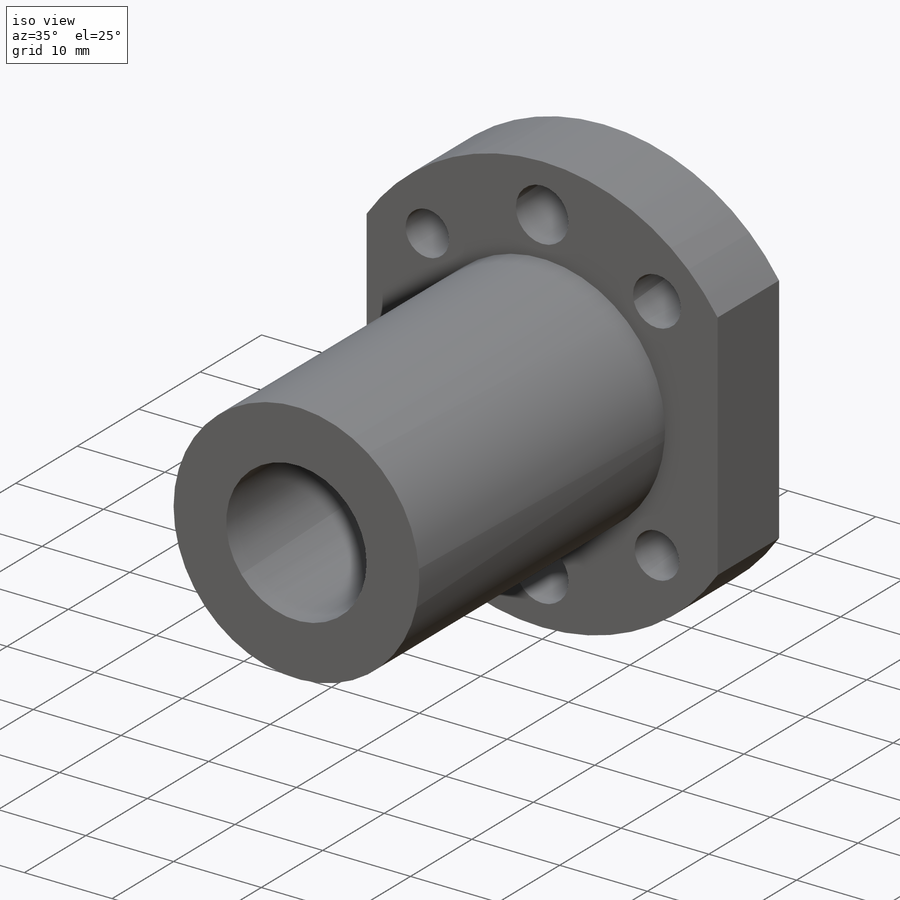
[diagram: iso view]
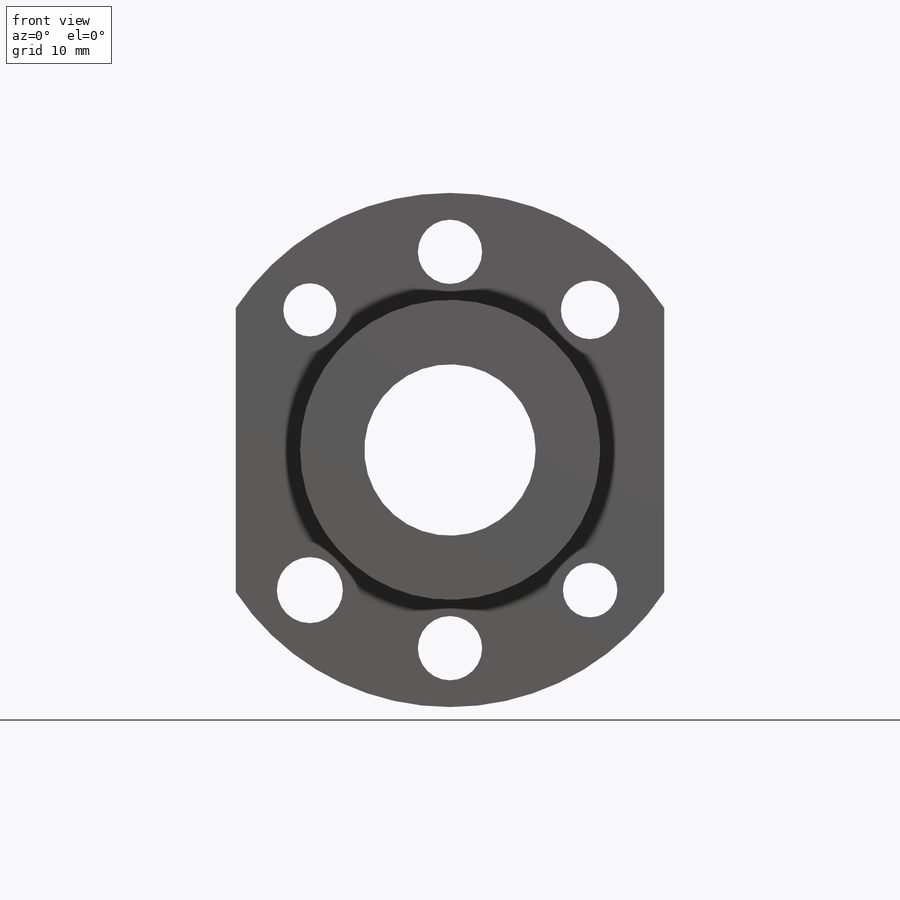
[diagram: front view]
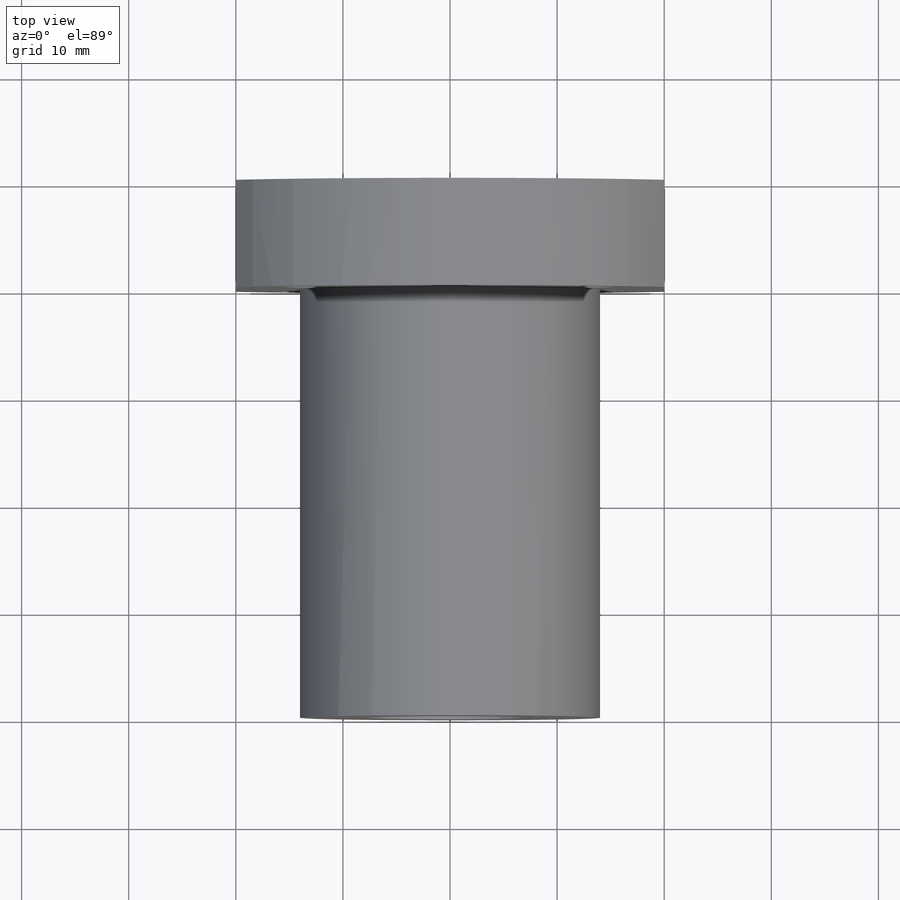
[diagram: top view]
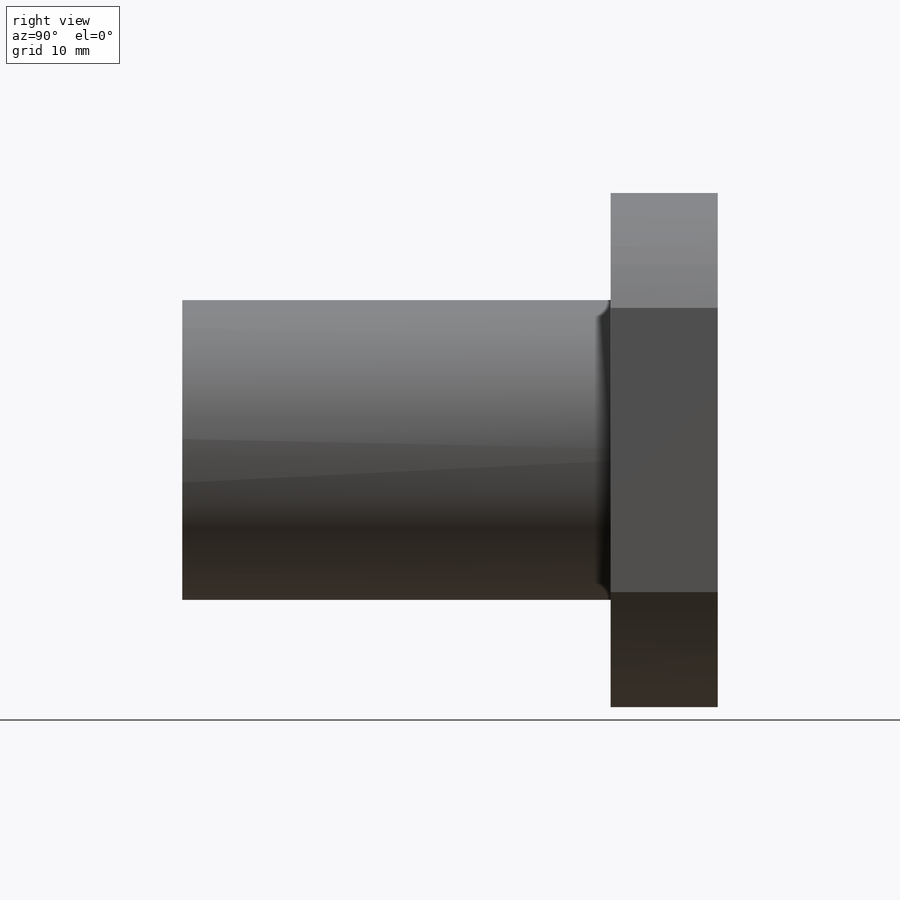
[diagram: right view]
SOLIDWORKS PART (.sldprt)
format: sldprt  version: not decoded by parser v0  size: 259,072 bytes
history: native  units: mm
features: sketch x5, plane x3, cut_extrude x3, extrude x2, material x1 (+10 scaffold rows collapsed)
feature tree (24):
  scaffold x10  (default folders/planes/origin — collapsed)
  material  "材质 <未指定>"
  plane  "前视基准面"
  plane  "上视基准面"
  plane  "右视基准面"
  sketch  "草图1"  dims[D1=48.0mm]
  extrude  "凸台-拉伸1"  Depth=10mm
  sketch  "草图2"  dims[D1=28.0mm]
  extrude  "凸台-拉伸2"  Depth=40mm
  sketch  "草图3"  dims[D1=16.0mm]
  cut_extrude  "切除-拉伸1"  Depth=50mm
  sketch  "草图4"  dims[D1=24.0mm D2=20.0mm D3=20.0mm]
  cut_extrude  "切除-拉伸2"  Depth=10mm
  sketch  "草图5"  dims[c1.D1=6.0mm c1.D2=6.0mm c1.D3=24.0mm c2.D3=45.0deg c2.D4=24.0mm c3.D4=45.0deg c3.D5=~18.503143mm c4.D5=45.0deg c4.D6=~18.503143mm c5.D6=45.0deg]
  cut_extrude  "切除-拉伸3"  Depth=10mm
decode coverage: 10 of 10 modeling features carry decoded parameters
note: ~ marks probable driven/reference dimensions
note: suppression state not decoded; provenance and decode notes live in map.json
